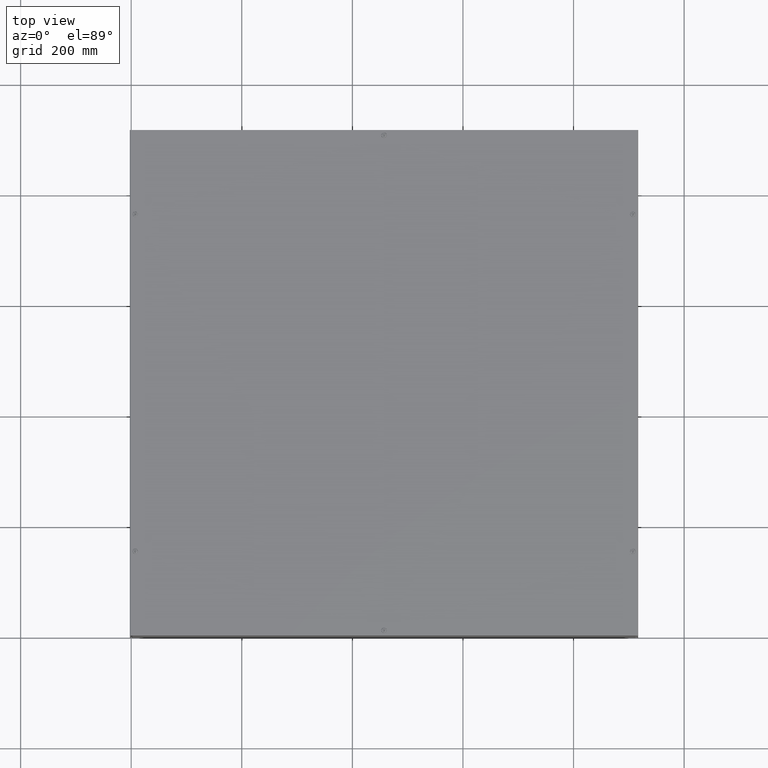
[diagram: clean part render]
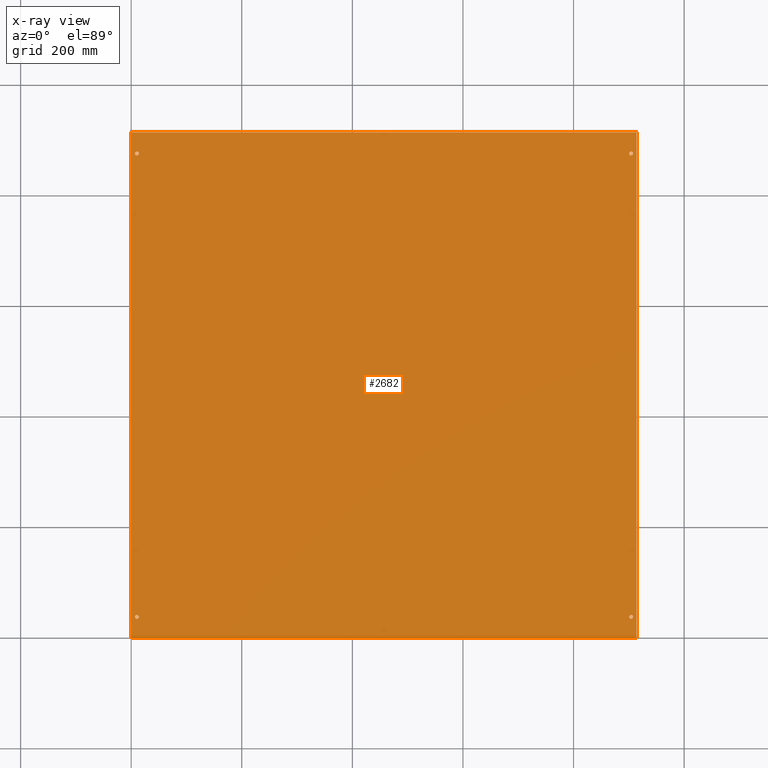
[diagram: x-ray — body ghosted, one internal face saturated and labeled with its STEP entity id]
A machine part, top view, then the same camera in x-ray: the body is ghosted and one INTERNAL B-rep face — a face not visible from any outside direction — is saturated and labeled: STEP entity #2682.
In plain terms, the highlighted planar face has unit normal (0, 0, 1).
Its self-contained STEP definition (entity closure, byte-faithful):
#157=PLANE('',#2880);
#276=LINE('',#3970,#496);
#281=LINE('',#3988,#501);
#283=LINE('',#3991,#503);
#285=LINE('',#3995,#505);
#496=VECTOR('',#3244,36.);
#501=VECTOR('',#3267,36.);
#503=VECTOR('',#3271,35.9688);
#505=VECTOR('',#3277,35.9688);
#691=FACE_BOUND('',#933,.T.);
#692=FACE_BOUND('',#934,.T.);
#693=FACE_BOUND('',#935,.T.);
#694=FACE_BOUND('',#936,.T.);
#695=FACE_BOUND('',#937,.T.);
#933=EDGE_LOOP('',(#1932));
#934=EDGE_LOOP('',(#1933));
#935=EDGE_LOOP('',(#1934));
#936=EDGE_LOOP('',(#1935));
#937=EDGE_LOOP('',(#1936,#1937,#1938,#1939));
#1071=CIRCLE('',#2805,0.140625);
#1073=CIRCLE('',#2808,0.140625);
#1075=CIRCLE('',#2811,0.140625);
#1077=CIRCLE('',#2814,0.140625);
#1167=VERTEX_POINT('',#3806);
#1169=VERTEX_POINT('',#3811);
#1171=VERTEX_POINT('',#3816);
#1173=VERTEX_POINT('',#3821);
#1216=VERTEX_POINT('',#3961);
#1217=VERTEX_POINT('',#3965);
#1220=VERTEX_POINT('',#3979);
#1221=VERTEX_POINT('',#3983);
#1395=EDGE_CURVE('',#1167,#1167,#1071,.T.);
#1397=EDGE_CURVE('',#1169,#1169,#1073,.T.);
#1399=EDGE_CURVE('',#1171,#1171,#1075,.T.);
#1401=EDGE_CURVE('',#1173,#1173,#1077,.T.);
#1472=EDGE_CURVE('',#1216,#1217,#276,.T.);
#1481=EDGE_CURVE('',#1220,#1221,#281,.T.);
#1483=EDGE_CURVE('',#1216,#1221,#283,.T.);
#1485=EDGE_CURVE('',#1220,#1217,#285,.T.);
#1932=ORIENTED_EDGE('',*,*,#1395,.T.);
#1933=ORIENTED_EDGE('',*,*,#1397,.T.);
#1934=ORIENTED_EDGE('',*,*,#1399,.T.);
#1935=ORIENTED_EDGE('',*,*,#1401,.T.);
#1936=ORIENTED_EDGE('',*,*,#1481,.T.);
#1937=ORIENTED_EDGE('',*,*,#1483,.F.);
#1938=ORIENTED_EDGE('',*,*,#1472,.T.);
#1939=ORIENTED_EDGE('',*,*,#1485,.F.);
#2682=ADVANCED_FACE('',(#691,#692,#693,#694,#695),#157,.T.);
#2805=AXIS2_PLACEMENT_3D('',#3807,#3068,#3069);
#2808=AXIS2_PLACEMENT_3D('',#3812,#3074,#3075);
#2811=AXIS2_PLACEMENT_3D('',#3817,#3080,#3081);
#2814=AXIS2_PLACEMENT_3D('',#3822,#3086,#3087);
#2880=AXIS2_PLACEMENT_3D('',#3996,#3278,#3279);
#3068=DIRECTION('center_axis',(0.,0.,-1.));
#3069=DIRECTION('ref_axis',(1.,1.31841775055506E-017,9.9035134557342E-014));
#3074=DIRECTION('center_axis',(0.,0.,-1.));
#3075=DIRECTION('ref_axis',(1.,6.25507577079227E-016,9.9035134557342E-014));
#3080=DIRECTION('center_axis',(0.,0.,-1.));
#3081=DIRECTION('ref_axis',(-1.,-6.12323399573676E-016,0.));
#3086=DIRECTION('center_axis',(0.,0.,-1.));
#3087=DIRECTION('ref_axis',(-1.,0.,0.));
#3244=DIRECTION('',(3.06118744623379E-016,-1.,0.));
#3267=DIRECTION('',(-3.10823593945801E-016,1.,0.));
#3271=DIRECTION('',(1.,1.554117969729E-016,0.));
#3277=DIRECTION('',(-1.,0.,0.));
#3278=DIRECTION('center_axis',(0.,0.,1.));
#3279=DIRECTION('ref_axis',(1.,0.,0.));
#3806=CARTESIAN_POINT('',(0.546874999999981,1.50000000000001,0.0937499999982715));
#3807=CARTESIAN_POINT('Origin',(0.406249999999987,1.50000000000001,0.0937499999982576));
#3811=CARTESIAN_POINT('',(0.54687499999997,34.5,0.0937499999982715));
#3812=CARTESIAN_POINT('Origin',(0.406249999999976,34.5,0.0937499999982576));
#3816=CARTESIAN_POINT('',(35.453125,1.50000000000002,0.09375));
#3817=CARTESIAN_POINT('Origin',(35.59375,1.50000000000002,0.09375));
#3821=CARTESIAN_POINT('',(35.453125,34.5,0.09375));
#3822=CARTESIAN_POINT('Origin',(35.59375,34.5,0.09375));
#3961=CARTESIAN_POINT('',(0.015599999999989,36.,0.09375));
#3965=CARTESIAN_POINT('',(0.0156,4.77612251667467E-018,0.09375));
#3970=CARTESIAN_POINT('',(0.0155999999999986,9.,0.09375));
#3979=CARTESIAN_POINT('',(35.9844,-2.42442403277702E-018,0.09375));
#3983=CARTESIAN_POINT('',(35.9844,36.,0.09375));
#3988=CARTESIAN_POINT('',(35.9844,27.,0.09375));
#3991=CARTESIAN_POINT('',(36.,36.,0.09375));
#3995=CARTESIAN_POINT('',(0.,0.,0.09375));
#3996=CARTESIAN_POINT('Origin',(18.,18.,0.09375));